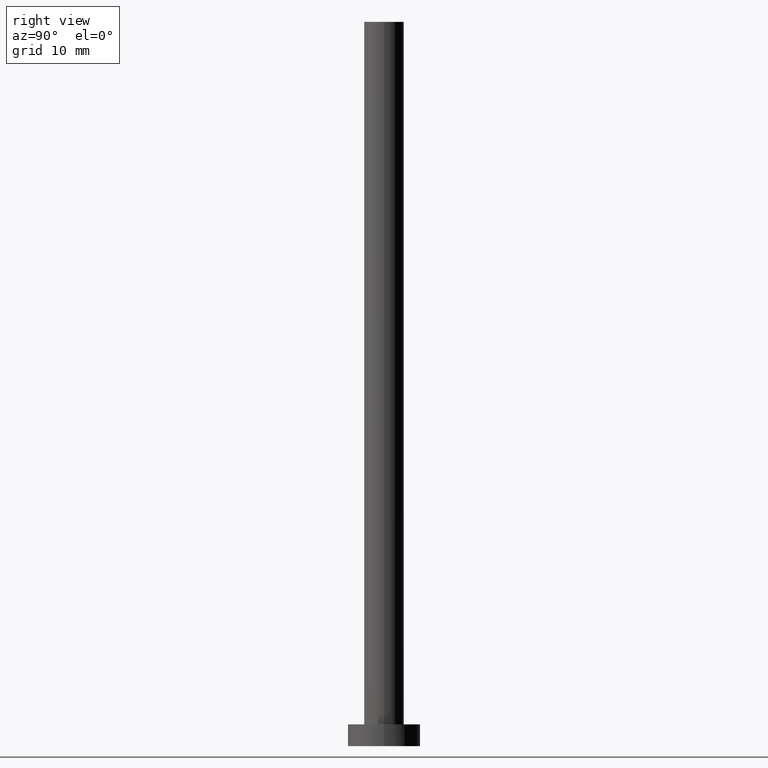
[diagram: clean part render]
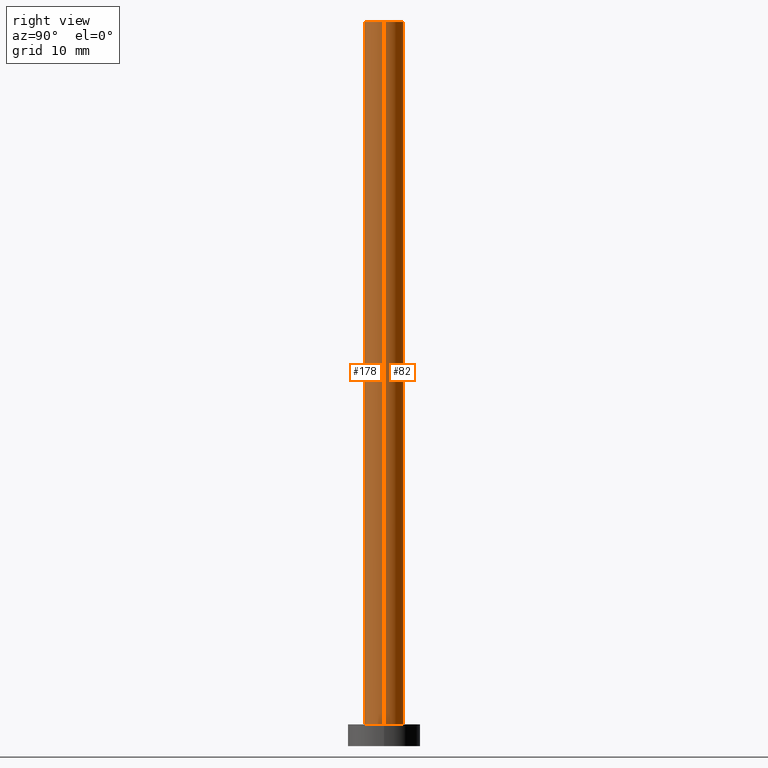
[diagram: same view with one multi-face feature highlighted, each face labeled with its STEP entity id]
A machine part, right view. The highlighted faces form ONE feature: a constant-radius fillet chain: 2 tangent blend faces with common blend radius 2.75 mm. The faces share edges in the B-rep.
Their STEP definitions:
[1] entity #178 (Cylinder):
#7 = CARTESIAN_POINT ( 'NONE',  ( 0.000000000000000000, 0.000000000000000000, 3.000000000000000000 ) ) ;
#11 = AXIS2_PLACEMENT_3D ( 'NONE', #236, #238, #64 ) ;
#15 = ORIENTED_EDGE ( 'NONE', *, *, #232, .F. ) ;
#21 = VECTOR ( 'NONE', #66, 1000.000000000000000 ) ;
#35 = VERTEX_POINT ( 'NONE', #44 ) ;
#44 = CARTESIAN_POINT ( 'NONE',  ( 2.750000000000000000, 3.367778697655220519E-16, 3.000000000000000000 ) ) ;
#51 = CARTESIAN_POINT ( 'NONE',  ( 2.750000000000000000, 3.367778697655220519E-16, 100.0000000000000000 ) ) ;
#64 = DIRECTION ( 'NONE',  ( -1.000000000000000000, 0.000000000000000000, 0.000000000000000000 ) ) ;
#66 = DIRECTION ( 'NONE',  ( -0.000000000000000000, -0.000000000000000000, -1.000000000000000000 ) ) ;
#73 = ORIENTED_EDGE ( 'NONE', *, *, #87, .F. ) ;
#80 = AXIS2_PLACEMENT_3D ( 'NONE', #7, #219, #183 ) ;
#84 = DIRECTION ( 'NONE',  ( 0.000000000000000000, 0.000000000000000000, 1.000000000000000000 ) ) ;
#87 = EDGE_CURVE ( 'NONE', #200, #147, #143, .T. ) ;
#92 = CARTESIAN_POINT ( 'NONE',  ( 2.750000000000000000, 3.367778697655220519E-16, 100.0000000000000000 ) ) ;
#97 = CARTESIAN_POINT ( 'NONE',  ( -2.750000000000000000, 0.000000000000000000, 100.0000000000000000 ) ) ;
#101 = ORIENTED_EDGE ( 'NONE', *, *, #185, .T. ) ;
#118 = AXIS2_PLACEMENT_3D ( 'NONE', #243, #84, #159 ) ;
#123 = CARTESIAN_POINT ( 'NONE',  ( -2.750000000000000000, 0.000000000000000000, 100.0000000000000000 ) ) ;
#133 = DIRECTION ( 'NONE',  ( -0.000000000000000000, -0.000000000000000000, -1.000000000000000000 ) ) ;
#143 = CIRCLE ( 'NONE', #118, 2.750000000000000000 ) ;
#144 = EDGE_CURVE ( 'NONE', #200, #216, #174, .T. ) ;
#147 = VERTEX_POINT ( 'NONE', #92 ) ;
#153 = FACE_OUTER_BOUND ( 'NONE', #206, .T. ) ;
#159 = DIRECTION ( 'NONE',  ( 1.000000000000000000, 0.000000000000000000, 0.000000000000000000 ) ) ;
#160 = LINE ( 'NONE', #51, #21 ) ;
#174 = LINE ( 'NONE', #97, #205 ) ;
#175 = CIRCLE ( 'NONE', #80, 2.750000000000000000 ) ;
#176 = ORIENTED_EDGE ( 'NONE', *, *, #144, .T. ) ;
#178 = ADVANCED_FACE ( 'NONE', ( #153 ), #193, .T. ) ;
#183 = DIRECTION ( 'NONE',  ( 1.000000000000000000, 0.000000000000000000, 0.000000000000000000 ) ) ;
#185 = EDGE_CURVE ( 'NONE', #216, #35, #175, .T. ) ;
#193 = CYLINDRICAL_SURFACE ( 'NONE', #11, 2.750000000000000000 ) ;
#200 = VERTEX_POINT ( 'NONE', #123 ) ;
#205 = VECTOR ( 'NONE', #133, 1000.000000000000000 ) ;
#206 = EDGE_LOOP ( 'NONE', ( #15, #73, #176, #101 ) ) ;
#216 = VERTEX_POINT ( 'NONE', #228 ) ;
#219 = DIRECTION ( 'NONE',  ( 0.000000000000000000, 0.000000000000000000, 1.000000000000000000 ) ) ;
#228 = CARTESIAN_POINT ( 'NONE',  ( -2.750000000000000000, 0.000000000000000000, 3.000000000000000000 ) ) ;
#232 = EDGE_CURVE ( 'NONE', #147, #35, #160, .T. ) ;
#236 = CARTESIAN_POINT ( 'NONE',  ( 0.000000000000000000, 0.000000000000000000, 100.0000000000000000 ) ) ;
#238 = DIRECTION ( 'NONE',  ( -0.000000000000000000, -0.000000000000000000, -1.000000000000000000 ) ) ;
#243 = CARTESIAN_POINT ( 'NONE',  ( 0.000000000000000000, 0.000000000000000000, 100.0000000000000000 ) ) ;
[2] entity #82 (Cylinder):
#1 = FACE_OUTER_BOUND ( 'NONE', #43, .T. ) ;
#8 = EDGE_CURVE ( 'NONE', #35, #216, #79, .T. ) ;
#12 = AXIS2_PLACEMENT_3D ( 'NONE', #128, #248, #53 ) ;
#14 = DIRECTION ( 'NONE',  ( -1.000000000000000000, 0.000000000000000000, 0.000000000000000000 ) ) ;
#21 = VECTOR ( 'NONE', #66, 1000.000000000000000 ) ;
#35 = VERTEX_POINT ( 'NONE', #44 ) ;
#41 = CARTESIAN_POINT ( 'NONE',  ( 0.000000000000000000, 0.000000000000000000, 3.000000000000000000 ) ) ;
#43 = EDGE_LOOP ( 'NONE', ( #130, #156, #120, #142 ) ) ;
#44 = CARTESIAN_POINT ( 'NONE',  ( 2.750000000000000000, 3.367778697655220519E-16, 3.000000000000000000 ) ) ;
#51 = CARTESIAN_POINT ( 'NONE',  ( 2.750000000000000000, 3.367778697655220519E-16, 100.0000000000000000 ) ) ;
#53 = DIRECTION ( 'NONE',  ( 1.000000000000000000, 0.000000000000000000, 0.000000000000000000 ) ) ;
#66 = DIRECTION ( 'NONE',  ( -0.000000000000000000, -0.000000000000000000, -1.000000000000000000 ) ) ;
#75 = CYLINDRICAL_SURFACE ( 'NONE', #233, 2.750000000000000000 ) ;
#79 = CIRCLE ( 'NONE', #245, 2.750000000000000000 ) ;
#82 = ADVANCED_FACE ( 'NONE', ( #1 ), #75, .T. ) ;
#92 = CARTESIAN_POINT ( 'NONE',  ( 2.750000000000000000, 3.367778697655220519E-16, 100.0000000000000000 ) ) ;
#97 = CARTESIAN_POINT ( 'NONE',  ( -2.750000000000000000, 0.000000000000000000, 100.0000000000000000 ) ) ;
#115 = DIRECTION ( 'NONE',  ( -0.000000000000000000, -0.000000000000000000, -1.000000000000000000 ) ) ;
#120 = ORIENTED_EDGE ( 'NONE', *, *, #8, .T. ) ;
#123 = CARTESIAN_POINT ( 'NONE',  ( -2.750000000000000000, 0.000000000000000000, 100.0000000000000000 ) ) ;
#126 = CIRCLE ( 'NONE', #12, 2.750000000000000000 ) ;
#128 = CARTESIAN_POINT ( 'NONE',  ( 0.000000000000000000, 0.000000000000000000, 100.0000000000000000 ) ) ;
#130 = ORIENTED_EDGE ( 'NONE', *, *, #242, .F. ) ;
#133 = DIRECTION ( 'NONE',  ( -0.000000000000000000, -0.000000000000000000, -1.000000000000000000 ) ) ;
#142 = ORIENTED_EDGE ( 'NONE', *, *, #144, .F. ) ;
#144 = EDGE_CURVE ( 'NONE', #200, #216, #174, .T. ) ;
#147 = VERTEX_POINT ( 'NONE', #92 ) ;
#154 = CARTESIAN_POINT ( 'NONE',  ( 0.000000000000000000, 0.000000000000000000, 100.0000000000000000 ) ) ;
#156 = ORIENTED_EDGE ( 'NONE', *, *, #232, .T. ) ;
#160 = LINE ( 'NONE', #51, #21 ) ;
#174 = LINE ( 'NONE', #97, #205 ) ;
#200 = VERTEX_POINT ( 'NONE', #123 ) ;
#205 = VECTOR ( 'NONE', #133, 1000.000000000000000 ) ;
#208 = DIRECTION ( 'NONE',  ( 0.000000000000000000, 0.000000000000000000, 1.000000000000000000 ) ) ;
#216 = VERTEX_POINT ( 'NONE', #228 ) ;
#228 = CARTESIAN_POINT ( 'NONE',  ( -2.750000000000000000, 0.000000000000000000, 3.000000000000000000 ) ) ;
#232 = EDGE_CURVE ( 'NONE', #147, #35, #160, .T. ) ;
#233 = AXIS2_PLACEMENT_3D ( 'NONE', #154, #115, #14 ) ;
#242 = EDGE_CURVE ( 'NONE', #147, #200, #126, .T. ) ;
#245 = AXIS2_PLACEMENT_3D ( 'NONE', #41, #208, #254 ) ;
#248 = DIRECTION ( 'NONE',  ( 0.000000000000000000, 0.000000000000000000, 1.000000000000000000 ) ) ;
#254 = DIRECTION ( 'NONE',  ( 1.000000000000000000, 0.000000000000000000, 0.000000000000000000 ) ) ;